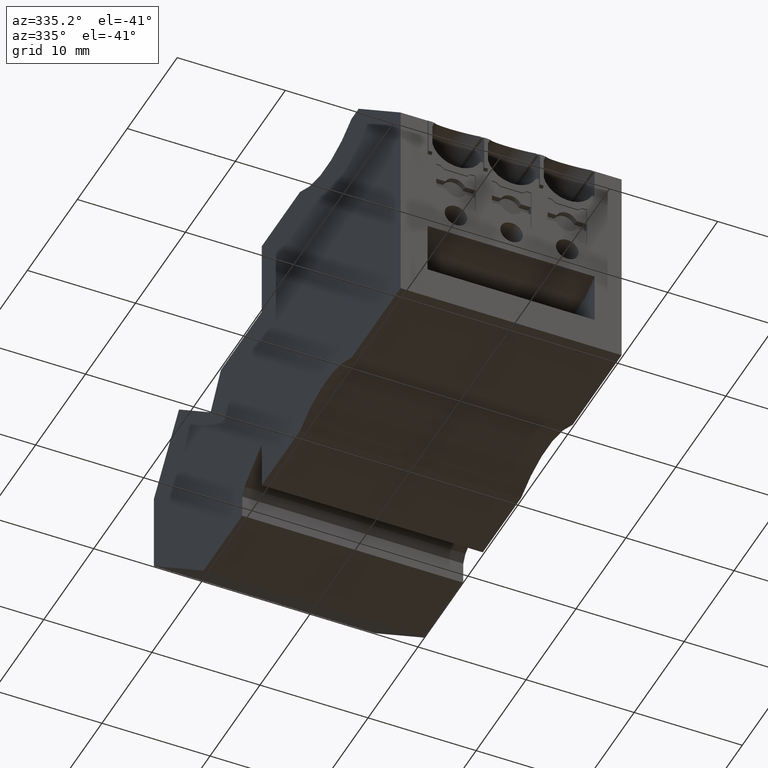
[diagram: clean part render]
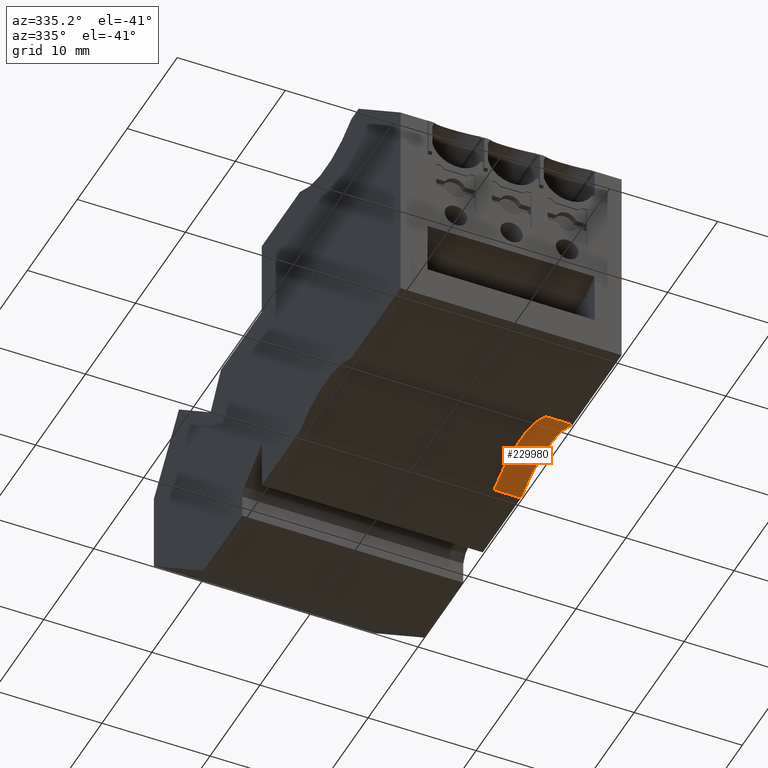
[diagram: same view with one face highlighted and labeled with its STEP entity id]
A machine part, auxiliary view. The second image highlights one B-rep face of the part: STEP entity #229980.
In plain terms, the highlighted cylindrical surface (partial cylindrical patch) has radius 10 mm, axis along (-1, -0, 0).
Its self-contained STEP definition (entity closure, byte-faithful):
#64830=CARTESIAN_POINT('',(430.260883755033,670.934347662603,
83.5699999966105));
#64840=VERTEX_POINT('',#64830);
#64870=CARTESIAN_POINT('',(435.425728077909,662.371381872618,
83.5699999989104));
#64880=DIRECTION('',(2.3809661542687E-10,4.1220396710112E-10,1.));
#64890=DIRECTION('',(1.,-1.20456372654242E-9,-2.38096614930344E-10));
#64900=AXIS2_PLACEMENT_3D('',#64870,#64880,#64890);
#64910=CIRCLE('',#64900,10.);
#64920=CARTESIAN_POINT('',(440.590572461372,670.934347641997,
83.5699999938473));
#64930=VERTEX_POINT('',#64920);
#64940=EDGE_CURVE('',#64930,#64840,#64910,.T.);
#228590=CARTESIAN_POINT('',(440.590572458673,670.934347629077,
86.0699999936425));
#228600=VERTEX_POINT('',#228590);
#228630=CARTESIAN_POINT('',(435.425728078504,662.371381873649,
86.0699999982817));
#228640=DIRECTION('',(1.28100595517667E-10,4.64504649617954E-10,1.));
#228650=DIRECTION('',(0.707106782058739,0.707106780314356,
-4.19035115678159E-10));
#228660=AXIS2_PLACEMENT_3D('',#228630,#228640,#228650);
#228670=CIRCLE('',#228660,10.);
#228680=CARTESIAN_POINT('',(430.260883718938,670.934347641504,
86.0699999949657));
#228690=VERTEX_POINT('',#228680);
#228700=EDGE_CURVE('',#228600,#228690,#228670,.T.);
#229490=CARTESIAN_POINT('',(435.425728077909,662.371381872618,
83.5699999942856));
#229500=DIRECTION('',(-2.3809661542687E-10,-4.1220396710112E-10,-1.));
#229510=DIRECTION('',(1.,-1.20456367103126E-9,-2.38096347605881E-10));
#229520=AXIS2_PLACEMENT_3D('',#229490,#229500,#229510);
#229530=CYLINDRICAL_SURFACE('',#229520,10.);
#229540=CARTESIAN_POINT('',(432.124069178344,670.934347638261,
83.5699999954431));
#229550=DIRECTION('',(1.20456578035086E-9,1.,-3.99255701708136E-10));
#229560=DIRECTION('',(1.,-1.20456578045502E-9,-2.60886165655907E-10));
#229570=AXIS2_PLACEMENT_3D('',#229540,#229550,#229560);
#229580=PLANE('',#229570);
#229590=CARTESIAN_POINT('',(430.260883718396,670.934347640505,
83.5699999919895));
#229600=CARTESIAN_POINT('',(430.260883718441,670.934347640589,
83.7783333255708));
#229610=CARTESIAN_POINT('',(430.260883718486,670.934347640672,
83.9866666591522));
#229620=CARTESIAN_POINT('',(430.260883718531,670.934347640755,
84.1949999927335));
#229630=CARTESIAN_POINT('',(430.260883718577,670.934347640838,
84.4033333263149));
#229640=CARTESIAN_POINT('',(430.260883718622,670.934347640921,
84.6116666598962));
#229650=CARTESIAN_POINT('',(430.260883718667,670.934347641004,
84.8199999934776));
#229660=CARTESIAN_POINT('',(430.260883718712,670.934347641088,
85.0283333270589));
#229670=CARTESIAN_POINT('',(430.260883718757,670.934347641171,
85.2366666606403));
#229680=CARTESIAN_POINT('',(430.260883718802,670.934347641254,
85.4449999942217));
#229690=CARTESIAN_POINT('',(430.260883718847,670.934347641337,
85.653333327803));
#229700=CARTESIAN_POINT('',(430.260883718893,670.93434764142,
85.8616666613843));
#229710=CARTESIAN_POINT('',(430.260883718938,670.934347641504,
86.0699999949657));
#229720=B_SPLINE_CURVE_WITH_KNOTS('',3,(#229590,#229600,#229610,#229620,
#229630,#229640,#229650,#229660,#229670,#229680,#229690,#229700,#229710)
,.UNSPECIFIED.,.F.,.F.,(4,3,3,3,4),(0.,0.625000000744052,
1.25000000148812,1.87500000223218,2.50000000297624),.UNSPECIFIED.);
#229730=SURFACE_CURVE('',#229720,(#229530,#229580),.CURVE_3D.);
#229740=EDGE_CURVE('',#64840,#228690,#229730,.T.);
#229870=ORIENTED_EDGE('',*,*,#229740,.F.);
#229880=ORIENTED_EDGE('',*,*,#228700,.T.);
#229890=CARTESIAN_POINT('',(440.590572458078,670.934347628046,
83.5699999895261));
#229900=DIRECTION('',(-2.3809661542687E-10,-4.1220396710112E-10,-1.));
#229910=VECTOR('',#229900,1.);
#229920=LINE('',#229890,#229910);
#229930=EDGE_CURVE('',#228600,#64930,#229920,.T.);
#229940=ORIENTED_EDGE('',*,*,#229930,.F.);
#229950=ORIENTED_EDGE('',*,*,#64940,.F.);
#229960=EDGE_LOOP('',(#229950,#229940,#229880,#229870));
#229970=FACE_OUTER_BOUND('',#229960,.T.);
#229980=ADVANCED_FACE('',(#229970),#229530,.F.);